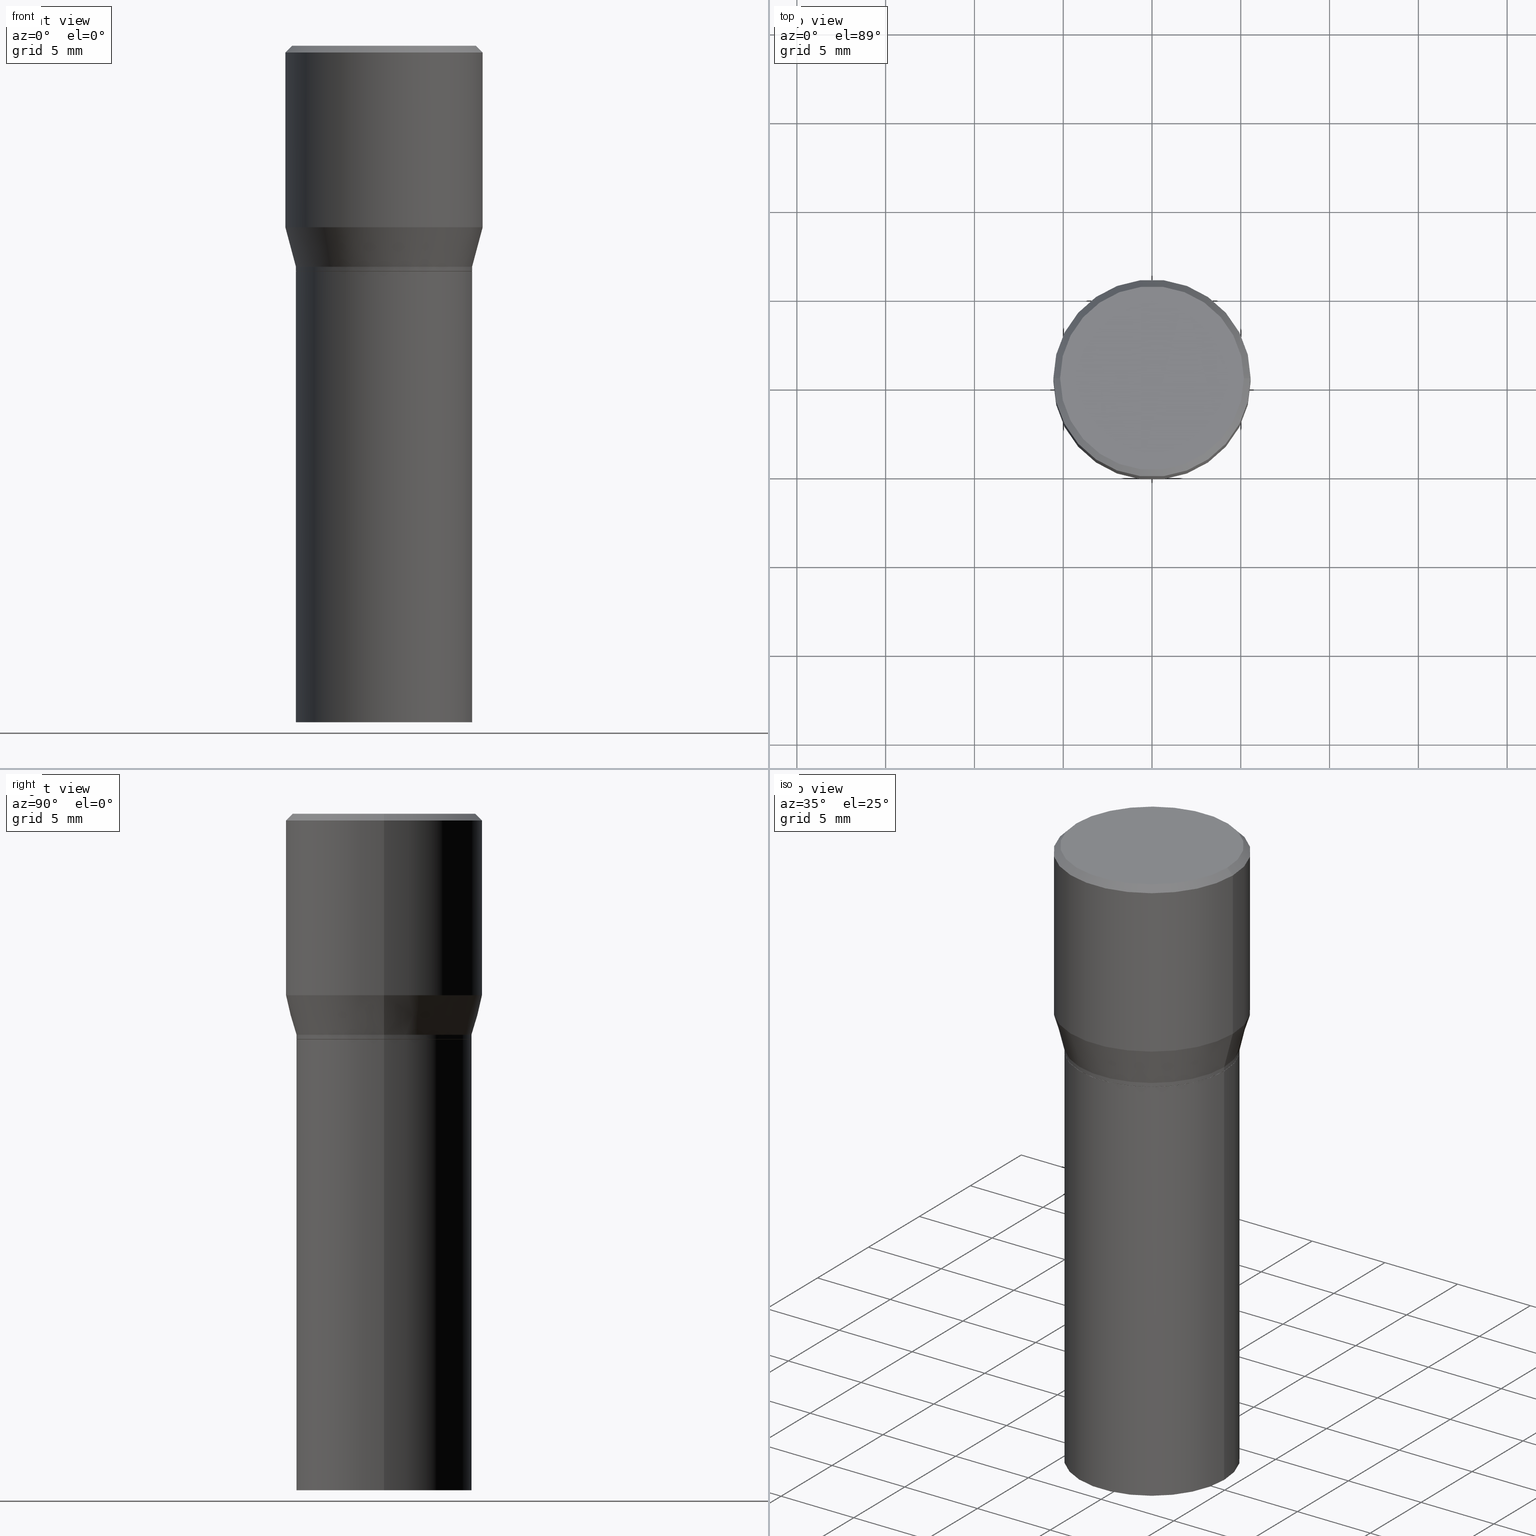
[diagram: canonical four-view strip — front | top / right | iso, engineering-drawing reading convention]
A machine part, canonical four-view strip (front | top / right | iso — engineering-drawing reading convention). The complete STEP part file that produces these views, byte-faithful:
ISO-10303-21;
HEADER;
FILE_DESCRIPTION (( 'STEP AP203' ),
    '1' );
FILE_NAME ('30835.STEP',
    '2024-03-13T16:26:19',
    ( '' ),
    ( '' ),
    'SwSTEP 2.0',
    'SolidWorks 2023',
    '' );
FILE_SCHEMA (( 'CONFIG_CONTROL_DESIGN' ));
ENDSEC;

DATA;
#1 = EDGE_CURVE ( 'NONE', #431, #134, #230, .T. ) ;
#2 = CIRCLE ( 'NONE', #252, 0.1953000000000000014 ) ;
#3 = FACE_OUTER_BOUND ( 'NONE', #228, .T. ) ;
#4 = FACE_OUTER_BOUND ( 'NONE', #428, .T. ) ;
#5 = ADVANCED_FACE ( 'NONE', ( #55 ), #350, .T. ) ;
#6 = ORIENTED_EDGE ( 'NONE', *, *, #389, .F. ) ;
#7 = FACE_OUTER_BOUND ( 'NONE', #311, .T. ) ;
#8 = AXIS2_PLACEMENT_3D ( 'NONE', #409, #18, #420 ) ;
#9 = LOCAL_TIME ( 12, 26, 19.00000000000000000, #200 ) ;
#10 = DIRECTION ( 'NONE',  ( -0.2588190451025214611, 5.211531920934551042E-15, 0.9659258262890682012 ) ) ;
#11 = CARTESIAN_POINT ( 'NONE',  ( 0.000000000000000000, 0.000000000000000000, 0.000000000000000000 ) ) ;
#12 = CARTESIAN_POINT ( 'NONE',  ( 0.1952999999999999736, -1.363772610952127497E-15, 9.523173243129459375E-30 ) ) ;
#13 = EDGE_CURVE ( 'NONE', #232, #96, #72, .T. ) ;
#14 = ADVANCED_FACE ( 'NONE', ( #25 ), #259, .F. ) ;
#15 = CARTESIAN_POINT ( 'NONE',  ( 0.000000000000000000, 0.000000000000000000, 0.000000000000000000 ) ) ;
#16 = CARTESIAN_POINT ( 'NONE',  ( -0.2037499999999999867, 1.448964755619900421E-15, 1.060151966214468518E-16 ) ) ;
#17 = EDGE_LOOP ( 'NONE', ( #226, #132, #190, #56 ) ) ;
#18 = DIRECTION ( 'NONE',  ( -2.445468806185136597E-29, 3.491481338843145583E-15, 1.000000000000000000 ) ) ;
#19 = ADVANCED_FACE ( 'NONE', ( #388 ), #432, .F. ) ;
#20 = CARTESIAN_POINT ( 'NONE',  ( 0.1953000000000000014, -3.109513280373700880E-15, -0.5000000000000001110 ) ) ;
#21 = AXIS2_PLACEMENT_3D ( 'NONE', #286, #51, #323 ) ;
#22 = CARTESIAN_POINT ( 'NONE',  ( 0.000000000000000000, 0.000000000000000000, 0.000000000000000000 ) ) ;
#23 = DIRECTION ( 'NONE',  ( -1.000000000000000000, 6.982962677686266711E-15, 0.000000000000000000 ) ) ;
#24 = EDGE_LOOP ( 'NONE', ( #381, #380, #399, #419 ) ) ;
#25 = FACE_OUTER_BOUND ( 'NONE', #159, .T. ) ;
#26 = LINE ( 'NONE', #379, #235 ) ;
#27 = CARTESIAN_POINT ( 'NONE',  ( 1.221511668689476057E-29, -1.743994928752151682E-15, -0.4995000000000001661 ) ) ;
#28 = AXIS2_PLACEMENT_3D ( 'NONE', #423, #92, #299 ) ;
#29 = PERSON_AND_ORGANIZATION_ROLE ( 'creator' ) ;
#30 = MANIFOLD_SOLID_BREP ( 'Body-Move/Copy2[1]', #358 ) ;
#31 = FACE_OUTER_BOUND ( 'NONE', #180, .T. ) ;
#32 = DATE_TIME_ROLE ( 'classification_date' ) ;
#33 = ORIENTED_EDGE ( 'NONE', *, *, #236, .T. ) ;
#34 = LINE ( 'NONE', #316, #95 ) ;
#35 = CIRCLE ( 'NONE', #412, 0.2037499999999999867 ) ;
#36 = AXIS2_PLACEMENT_3D ( 'NONE', #147, #367, #314 ) ;
#37 = DIRECTION ( 'NONE',  ( -0.7071067811865452413, 2.468850131082233000E-15, -0.7071067811865497932 ) ) ;
#38 = DIRECTION ( 'NONE',  ( -2.445468806185136877E-29, 3.491481338843145188E-15, 1.000000000000000000 ) ) ;
#39 = LINE ( 'NONE', #108, #363 ) ;
#40 = VECTOR ( 'NONE', #155, 39.37007874015748143 ) ;
#41 = CARTESIAN_POINT ( 'NONE',  ( 1.222734403092568719E-29, -1.745740669421573186E-15, -0.5000000000000001110 ) ) ;
#42 = CC_DESIGN_PERSON_AND_ORGANIZATION_ASSIGNMENT ( #203, #137, ( #213 ) ) ;
#43 = DIRECTION ( 'NONE',  ( 1.000000000000000000, -6.982962677686265922E-15, 0.000000000000000000 ) ) ;
#44 = ADVANCED_FACE ( 'NONE', ( #348 ), #462, .T. ) ;
#45 = DIRECTION ( 'NONE',  ( -2.445468806185136597E-29, 3.491481338843145583E-15, 1.000000000000000000 ) ) ;
#46 = DIRECTION ( 'NONE',  ( -2.445468806185136597E-29, 3.491481338843145583E-15, 1.000000000000000000 ) ) ;
#47 = ORIENTED_EDGE ( 'NONE', *, *, #224, .T. ) ;
#48 = DIRECTION ( 'NONE',  ( 0.2588190451025214611, 1.565188264969621573E-15, 0.9659258262890682012 ) ) ;
#49 = AXIS2_PLACEMENT_3D ( 'NONE', #138, #166, #68 ) ;
#50 = AXIS2_PLACEMENT_3D ( 'NONE', #251, #45, #154 ) ;
#51 = DIRECTION ( 'NONE',  ( -2.445468806185136597E-29, 3.491481338843145583E-15, 1.000000000000000000 ) ) ;
#52 = CARTESIAN_POINT ( 'NONE',  ( 1.222734403092568719E-29, -1.745740669421573186E-15, -0.5000000000000001110 ) ) ;
#53 = VERTEX_POINT ( 'NONE', #141 ) ;
#54 = DIRECTION ( 'NONE',  ( -2.445468806185136597E-29, 3.491481338843145583E-15, 1.000000000000000000 ) ) ;
#55 = FACE_OUTER_BOUND ( 'NONE', #24, .T. ) ;
#56 = ORIENTED_EDGE ( 'NONE', *, *, #173, .F. ) ;
#57 = EDGE_LOOP ( 'NONE', ( #354, #404, #79, #301 ) ) ;
#58 = AXIS2_PLACEMENT_3D ( 'NONE', #184, #334, #225 ) ;
#59 = LOCAL_TIME ( 12, 26, 19.00000000000000000, #458 ) ;
#60 = DIRECTION ( 'NONE',  ( -2.445468806185136597E-29, 3.491481338843145583E-15, 1.000000000000000000 ) ) ;
#61 = DIRECTION ( 'NONE',  ( -2.445468806185136877E-29, 3.491481338843145188E-15, 1.000000000000000000 ) ) ;
#62 = CIRCLE ( 'NONE', #133, 0.1948000000000000009 ) ;
#63 = CALENDAR_DATE ( 2024, 13, 3 ) ;
#64 = EDGE_CURVE ( 'NONE', #82, #455, #406, .T. ) ;
#65 = CARTESIAN_POINT ( 'NONE',  ( 0.1953000000000000014, -3.107767539704279377E-15, -0.4995000000000001661 ) ) ;
#66 = DATE_TIME_ROLE ( 'creation_date' ) ;
#67 = ORIENTED_EDGE ( 'NONE', *, *, #64, .T. ) ;
#68 = DIRECTION ( 'NONE',  ( 1.000000000000000000, -6.982962677686265922E-15, 4.876176775795935793E-29 ) ) ;
#69 = APPROVAL_STATUS ( 'not_yet_approved' ) ;
#70 =( CONVERSION_BASED_UNIT ( 'INCH', #209 ) LENGTH_UNIT ( ) NAMED_UNIT ( #119 ) );
#71 = CARTESIAN_POINT ( 'NONE',  ( 3.668203209277705088E-31, -5.237222008264718399E-17, -0.01499999999999999944 ) ) ;
#72 = CIRCLE ( 'NONE', #28, 0.2037499999999999867 ) ;
#73 = DIRECTION ( 'NONE',  ( -2.445468806185136597E-29, 3.491481338843145583E-15, 1.000000000000000000 ) ) ;
#74 = COORDINATED_UNIVERSAL_TIME_OFFSET ( 5, 0, .BEHIND. ) ;
#75 = CALENDAR_DATE ( 2024, 13, 3 ) ;
#76 = EDGE_CURVE ( 'NONE', #345, #53, #460, .T. ) ;
#77 = APPROVAL_PERSON_ORGANIZATION ( #247, #405, #115 ) ;
#78 = PRODUCT_DEFINITION ( 'UNKNOWN', '', #453, #309 ) ;
#79 = ORIENTED_EDGE ( 'NONE', *, *, #322, .F. ) ;
#80 = DIRECTION ( 'NONE',  ( -2.445468806185136597E-29, 3.491481338843145583E-15, 1.000000000000000000 ) ) ;
#81 = DIRECTION ( 'NONE',  ( -2.445468806185136877E-29, 3.491481338843145188E-15, 1.000000000000000000 ) ) ;
#82 = VERTEX_POINT ( 'NONE', #65 ) ;
#83 = ORIENTED_EDGE ( 'NONE', *, *, #322, .T. ) ;
#84 = AXIS2_PLACEMENT_3D ( 'NONE', #304, #136, #274 ) ;
#85 = ADVANCED_BREP_SHAPE_REPRESENTATION ( '30835', ( #30, #337, #330 ), #305 ) ;
#86 = ORIENTED_EDGE ( 'NONE', *, *, #76, .T. ) ;
#87 = DIRECTION ( 'NONE',  ( -2.445468806185136597E-29, 3.491481338843145583E-15, 1.000000000000000000 ) ) ;
#88 = CARTESIAN_POINT ( 'NONE',  ( 1.198279715030717173E-29, -1.710825856033141537E-15, -0.4900000000000001021 ) ) ;
#89 = PRODUCT_RELATED_PRODUCT_CATEGORY ( 'detail', '', ( #421 ) ) ;
#90 = EDGE_CURVE ( 'NONE', #232, #345, #357, .T. ) ;
#91 = DIRECTION ( 'NONE',  ( 1.000000000000000000, -6.982962677686265922E-15, 0.000000000000000000 ) ) ;
#92 = DIRECTION ( 'NONE',  ( -2.445468806185136597E-29, 3.491481338843145583E-15, 1.000000000000000000 ) ) ;
#93 = LINE ( 'NONE', #336, #440 ) ;
#94 = AXIS2_PLACEMENT_3D ( 'NONE', #339, #54, #91 ) ;
#95 = VECTOR ( 'NONE', #38, 39.37007874015748143 ) ;
#96 = VERTEX_POINT ( 'NONE', #465 ) ;
#97 = DIRECTION ( 'NONE',  ( -2.445468806185136597E-29, 3.491481338843145583E-15, 1.000000000000000000 ) ) ;
#98 = ADVANCED_FACE ( 'NONE', ( #434 ), #317, .T. ) ;
#99 = DATE_AND_TIME ( #63, #254 ) ;
#100 = CARTESIAN_POINT ( 'NONE',  ( -0.2187500000000000000, 1.475150865661223567E-15, -0.01499999999999999944 ) ) ;
#101 = CIRCLE ( 'NONE', #382, 0.1952999999999999736 ) ;
#102 = AXIS2_PLACEMENT_3D ( 'NONE', #120, #113, #111 ) ;
#103 = DIRECTION ( 'NONE',  ( 1.000000000000000000, -6.982962677686265922E-15, 0.000000000000000000 ) ) ;
#104 = EDGE_LOOP ( 'NONE', ( #67, #444, #220, #331 ) ) ;
#105 = PERSON ( 'UNSPECIFIED', 'UNSPECIFIED', 'UNSPECIFIED', ('UNSPECIFIED'), ('UNSPECIFIED'), ('UNSPECIFIED') ) ;
#106 = SECURITY_CLASSIFICATION_LEVEL ( 'unclassified' ) ;
#107 = CARTESIAN_POINT ( 'NONE',  ( -0.1953000000000000014, -3.563049658126762559E-16, -0.4995000000000001661 ) ) ;
#108 = CARTESIAN_POINT ( 'NONE',  ( -0.1948000000000000009, -3.616034201608981156E-16, -0.5000000000000001110 ) ) ;
#109 = AXIS2_PLACEMENT_3D ( 'NONE', #262, #189, #266 ) ;
#110 = APPROVAL_PERSON_ORGANIZATION ( #233, #269, #205 ) ;
#111 = DIRECTION ( 'NONE',  ( -1.000000000000000000, 6.982962677686266711E-15, 0.000000000000000000 ) ) ;
#112 = APPROVAL_STATUS ( 'not_yet_approved' ) ;
#113 = DIRECTION ( 'NONE',  ( 2.445468806185136597E-29, -3.491481338843145583E-15, -1.000000000000000000 ) ) ;
#114 = AXIS2_PLACEMENT_3D ( 'NONE', #313, #398, #276 ) ;
#115 = APPROVAL_ROLE ( '' ) ;
#116 = APPLICATION_CONTEXT ( 'configuration controlled 3d designs of mechanical parts and assemblies' ) ;
#117 = DIRECTION ( 'NONE',  ( -2.445468806185136597E-29, 3.491481338843145583E-15, 1.000000000000000000 ) ) ;
#118 = DIRECTION ( 'NONE',  ( -2.445468806185136597E-29, 3.491481338843145583E-15, 1.000000000000000000 ) ) ;
#119 = DIMENSIONAL_EXPONENTS ( 1.000000000000000000, 0.000000000000000000, 0.000000000000000000, 0.000000000000000000, 0.000000000000000000, 0.000000000000000000, 0.000000000000000000 ) ;
#120 = CARTESIAN_POINT ( 'NONE',  ( 3.668203209277705088E-31, -5.237222008264718399E-17, -0.01499999999999999944 ) ) ;
#121 = ORIENTED_EDGE ( 'NONE', *, *, #13, .F. ) ;
#122 = PERSON_AND_ORGANIZATION ( #105, #427 ) ;
#123 = ORIENTED_EDGE ( 'NONE', *, *, #127, .F. ) ;
#124 = CLOSED_SHELL ( 'NONE', ( #403, #457, #5, #312, #402, #98, #44, #294, #14, #239, #361, #243 ) ) ;
#125 = ORIENTED_EDGE ( 'NONE', *, *, #90, .T. ) ;
#126 = CARTESIAN_POINT ( 'NONE',  ( -2.592568563193567003E-45, 3.701500806376036554E-31, 1.060151966214568974E-16 ) ) ;
#127 = EDGE_CURVE ( 'NONE', #455, #82, #2, .T. ) ;
#128 = CARTESIAN_POINT ( 'NONE',  ( 3.668203209277704895E-29, -5.237222008264718177E-15, -1.500000000000000222 ) ) ;
#129 = EDGE_CURVE ( 'NONE', #96, #53, #308, .T. ) ;
#130 = DIRECTION ( 'NONE',  ( 1.000000000000000000, -6.982962677686265922E-15, 4.876176775795935793E-29 ) ) ;
#131 = CYLINDRICAL_SURFACE ( 'NONE', #320, 0.1952999999999999736 ) ;
#132 = ORIENTED_EDGE ( 'NONE', *, *, #127, .T. ) ;
#133 = AXIS2_PLACEMENT_3D ( 'NONE', #52, #80, #182 ) ;
#134 = VERTEX_POINT ( 'NONE', #240 ) ;
#135 = ADVANCED_FACE ( 'NONE', ( #3 ), #441, .F. ) ;
#136 = DIRECTION ( 'NONE',  ( -2.445468806185136597E-29, 3.491481338843145583E-15, 1.000000000000000000 ) ) ;
#137 = PERSON_AND_ORGANIZATION_ROLE ( 'classification_officer' ) ;
#138 = CARTESIAN_POINT ( 'NONE',  ( 3.576687321579069994E-29, -5.368277968210015545E-15, -1.500000000000000222 ) ) ;
#139 = AXIS2_PLACEMENT_3D ( 'NONE', #128, #378, #188 ) ;
#140 = LOCAL_TIME ( 12, 26, 19.00000000000000000, #74 ) ;
#141 = CARTESIAN_POINT ( 'NONE',  ( 0.2187500000000000000, -1.579895305826517922E-15, -0.01499999999999999944 ) ) ;
#142 = UNCERTAINTY_MEASURE_WITH_UNIT (LENGTH_MEASURE( 1.000000000000000082E-05 ), #70, 'distance_accuracy_value', 'NONE');
#143 = EDGE_CURVE ( 'NONE', #96, #232, #35, .T. ) ;
#144 = EDGE_CURVE ( 'NONE', #82, #152, #383, .T. ) ;
#145 = ADVANCED_FACE ( 'NONE', ( #295 ), #187, .T. ) ;
#146 = CYLINDRICAL_SURFACE ( 'NONE', #50, 0.1952999999999999736 ) ;
#147 = CARTESIAN_POINT ( 'NONE',  ( 1.222734403092568719E-29, -1.745740669421573186E-15, -0.5000000000000001110 ) ) ;
#148 = DIRECTION ( 'NONE',  ( -2.445468806185136597E-29, 3.491481338843145583E-15, 1.000000000000000000 ) ) ;
#149 = DIRECTION ( 'NONE',  ( 1.000000000000000000, -6.982962677686266711E-15, 0.000000000000000000 ) ) ;
#150 = MECHANICAL_CONTEXT ( 'NONE', #116, 'mechanical' ) ;
#151 = CARTESIAN_POINT ( 'NONE',  ( -0.2187500000000000000, 1.554312234475219157E-15, -1.076017050993260622E-29 ) ) ;
#152 = VERTEX_POINT ( 'NONE', #261 ) ;
#153 = DIRECTION ( 'NONE',  ( 1.000000000000000000, -6.982962677686266711E-15, 0.000000000000000000 ) ) ;
#154 = DIRECTION ( 'NONE',  ( 1.000000000000000000, -6.982962677686265922E-15, 4.876176775795934672E-29 ) ) ;
#155 = DIRECTION ( 'NONE',  ( -2.445468806185136877E-29, 3.491481338843145188E-15, 1.000000000000000000 ) ) ;
#156 = ORIENTED_EDGE ( 'NONE', *, *, #362, .F. ) ;
#157 = VECTOR ( 'NONE', #250, 39.37007874015748143 ) ;
#158 = LOCAL_TIME ( 12, 26, 19.00000000000000000, #167 ) ;
#159 = EDGE_LOOP ( 'NONE', ( #394, #370 ) ) ;
#160 = CC_DESIGN_PERSON_AND_ORGANIZATION_ASSIGNMENT ( #122, #283, ( #421 ) ) ;
#161 = DIRECTION ( 'NONE',  ( 2.438088387897960049E-29, -3.491481338843145188E-15, -1.000000000000000000 ) ) ;
#162 = DIRECTION ( 'NONE',  ( 0.7071067811865715536, -2.468850131082509496E-15, 0.7071067811865232589 ) ) ;
#163 = VERTEX_POINT ( 'NONE', #376 ) ;
#164 = AXIS2_PLACEMENT_3D ( 'NONE', #343, #340, #23 ) ;
#165 = EDGE_CURVE ( 'NONE', #152, #163, #101, .T. ) ;
#166 = DIRECTION ( 'NONE',  ( -2.438088387897960049E-29, 3.491481338843145188E-15, 1.000000000000000000 ) ) ;
#167 = COORDINATED_UNIVERSAL_TIME_OFFSET ( 5, 0, .BEHIND. ) ;
#168 = PERSON_AND_ORGANIZATION ( #105, #427 ) ;
#169 = CC_DESIGN_PERSON_AND_ORGANIZATION_ASSIGNMENT ( #237, #208, ( #453 ) ) ;
#170 = CIRCLE ( 'NONE', #94, 0.1952999999999999736 ) ;
#171 = PERSON_AND_ORGANIZATION ( #105, #427 ) ;
#172 = CONICAL_SURFACE ( 'NONE', #36, 0.1948000000000000009, 0.7853981633974824739 ) ;
#173 = EDGE_CURVE ( 'NONE', #163, #152, #170, .T. ) ;
#174 = DATE_AND_TIME ( #450, #59 ) ;
#175 = EDGE_CURVE ( 'NONE', #134, #431, #391, .T. ) ;
#176 = CIRCLE ( 'NONE', #8, 0.1953000000000000014 ) ;
#177 = FACE_OUTER_BOUND ( 'NONE', #104, .T. ) ;
#178 = ORIENTED_EDGE ( 'NONE', *, *, #386, .F. ) ;
#179 = CARTESIAN_POINT ( 'NONE',  ( -0.2187500000000000000, 8.254944693389027239E-16, -0.01499999999999999944 ) ) ;
#180 = EDGE_LOOP ( 'NONE', ( #292, #397, #197, #414 ) ) ;
#181 = CIRCLE ( 'NONE', #303, 0.2187500000000000000 ) ;
#182 = DIRECTION ( 'NONE',  ( 1.000000000000000000, -6.982962677686267499E-15, 0.000000000000000000 ) ) ;
#183 = CIRCLE ( 'NONE', #461, 0.1948000000000000009 ) ;
#184 = CARTESIAN_POINT ( 'NONE',  ( 1.363772610952139922E-15, 0.1952999999999982528, -0.5000000000000007772 ) ) ;
#185 = DIRECTION ( 'NONE',  ( 1.000000000000000000, -6.982962677686266711E-15, 0.000000000000000000 ) ) ;
#186 = EDGE_LOOP ( 'NONE', ( #451, #375, #238, #264 ) ) ;
#187 = CYLINDRICAL_SURFACE ( 'NONE', #329, 0.1953000000000000014 ) ;
#188 = DIRECTION ( 'NONE',  ( 1.000000000000000000, -6.982962677686269077E-15, 0.000000000000000000 ) ) ;
#189 = DIRECTION ( 'NONE',  ( -2.438088387897960049E-29, 3.491481338843145188E-15, 1.000000000000000000 ) ) ;
#190 = ORIENTED_EDGE ( 'NONE', *, *, #144, .T. ) ;
#191 = VECTOR ( 'NONE', #37, 39.37007874015748143 ) ;
#192 = CIRCLE ( 'NONE', #222, 0.1953000000000000014 ) ;
#193 = FACE_OUTER_BOUND ( 'NONE', #277, .T. ) ;
#194 = ORIENTED_EDGE ( 'NONE', *, *, #223, .T. ) ;
#195 = CARTESIAN_POINT ( 'NONE',  ( 9.842606206466859638E-30, -1.405263310189985589E-15, -0.4024834085625100810 ) ) ;
#196 = CARTESIAN_POINT ( 'NONE',  ( -0.1953000000000000014, -2.103791375903670501E-15, -0.5000000000000001110 ) ) ;
#197 = ORIENTED_EDGE ( 'NONE', *, *, #64, .F. ) ;
#198 = APPROVAL ( #393, 'UNSPECIFIED' ) ;
#199 = AXIS2_PLACEMENT_3D ( 'NONE', #384, #161, #411 ) ;
#200 = COORDINATED_UNIVERSAL_TIME_OFFSET ( 5, 0, .BEHIND. ) ;
#201 = CC_DESIGN_DATE_AND_TIME_ASSIGNMENT ( #396, #66, ( #78 ) ) ;
#202 = EDGE_CURVE ( 'NONE', #53, #345, #207, .T. ) ;
#203 = PERSON_AND_ORGANIZATION ( #105, #427 ) ;
#204 = ORIENTED_EDGE ( 'NONE', *, *, #210, .F. ) ;
#205 = APPROVAL_ROLE ( '' ) ;
#206 = DIRECTION ( 'NONE',  ( -2.445468806185136597E-29, 3.491481338843145583E-15, 1.000000000000000000 ) ) ;
#207 = CIRCLE ( 'NONE', #244, 0.2187500000000000000 ) ;
#208 = PERSON_AND_ORGANIZATION_ROLE ( 'creator' ) ;
#209 = LENGTH_MEASURE_WITH_UNIT ( LENGTH_MEASURE( 0.02539999999999999897 ), #459 );
#210 = EDGE_CURVE ( 'NONE', #270, #285, #176, .T. ) ;
#211 = EDGE_CURVE ( 'NONE', #306, #275, #260, .T. ) ;
#212 = LINE ( 'NONE', #364, #157 ) ;
#213 = SECURITY_CLASSIFICATION ( '', '', #106 ) ;
#214 = ORIENTED_EDGE ( 'NONE', *, *, #129, .F. ) ;
#215 = FACE_OUTER_BOUND ( 'NONE', #333, .T. ) ;
#216 = CC_DESIGN_PERSON_AND_ORGANIZATION_ASSIGNMENT ( #168, #463, ( #453 ) ) ;
#217 = VERTEX_POINT ( 'NONE', #290 ) ;
#218 = LINE ( 'NONE', #371, #401 ) ;
#219 = FACE_OUTER_BOUND ( 'NONE', #186, .T. ) ;
#220 = ORIENTED_EDGE ( 'NONE', *, *, #165, .F. ) ;
#221 = ORIENTED_EDGE ( 'NONE', *, *, #211, .F. ) ;
#222 = AXIS2_PLACEMENT_3D ( 'NONE', #41, #46, #284 ) ;
#223 = EDGE_CURVE ( 'NONE', #377, #217, #62, .T. ) ;
#224 = EDGE_CURVE ( 'NONE', #152, #275, #218, .T. ) ;
#225 = DIRECTION ( 'NONE',  ( -1.000000000000000000, 6.982962677686265922E-15, -4.876176775795935793E-29 ) ) ;
#226 = ORIENTED_EDGE ( 'NONE', *, *, #307, .F. ) ;
#227 = ADVANCED_FACE ( 'NONE', ( #332 ), #443, .T. ) ;
#228 = EDGE_LOOP ( 'NONE', ( #83, #268 ) ) ;
#229 = CARTESIAN_POINT ( 'NONE',  ( 3.668203209277704895E-29, -5.237222008264718177E-15, -1.500000000000000222 ) ) ;
#230 = CIRCLE ( 'NONE', #139, 0.1953000000000000014 ) ;
#231 = AXIS2_PLACEMENT_3D ( 'NONE', #246, #73, #360 ) ;
#232 = VERTEX_POINT ( 'NONE', #16 ) ;
#233 = PERSON_AND_ORGANIZATION ( #105, #427 ) ;
#234 = CARTESIAN_POINT ( 'NONE',  ( 0.2187500000000000000, -1.553106157095169608E-15, -0.01499999999999999944 ) ) ;
#235 = VECTOR ( 'NONE', #162, 39.37007874015748854 ) ;
#236 = EDGE_CURVE ( 'NONE', #275, #306, #181, .T. ) ;
#237 = PERSON_AND_ORGANIZATION ( #105, #427 ) ;
#238 = ORIENTED_EDGE ( 'NONE', *, *, #236, .F. ) ;
#239 = ADVANCED_FACE ( 'NONE', ( #193 ), #422, .F. ) ;
#240 = CARTESIAN_POINT ( 'NONE',  ( -0.1953000000000000014, -2.103791375903670501E-15, -1.500000000000000222 ) ) ;
#241 = DIRECTION ( 'NONE',  ( -0.7071067811865715536, 7.493145998870439357E-15, 0.7071067811865232589 ) ) ;
#242 = APPROVAL_DATE_TIME ( #174, #198 ) ;
#243 = ADVANCED_FACE ( 'NONE', ( #300 ), #131, .T. ) ;
#244 = AXIS2_PLACEMENT_3D ( 'NONE', #410, #265, #153 ) ;
#245 = CONICAL_SURFACE ( 'NONE', #102, 0.2187500000000000000, 0.7853981633974450594 ) ;
#246 = CARTESIAN_POINT ( 'NONE',  ( 1.222734403092568719E-29, -1.745740669421573186E-15, -0.5000000000000001110 ) ) ;
#247 = PERSON_AND_ORGANIZATION ( #105, #427 ) ;
#248 = APPLICATION_PROTOCOL_DEFINITION ( 'international standard', 'config_control_design', 1994, #395 ) ;
#249 = ORIENTED_EDGE ( 'NONE', *, *, #437, .F. ) ;
#250 = DIRECTION ( 'NONE',  ( -2.445468806185136877E-29, 3.491481338843145188E-15, 1.000000000000000000 ) ) ;
#251 = CARTESIAN_POINT ( 'NONE',  ( 0.000000000000000000, 0.000000000000000000, 0.000000000000000000 ) ) ;
#252 = AXIS2_PLACEMENT_3D ( 'NONE', #430, #97, #103 ) ;
#253 = EDGE_CURVE ( 'NONE', #431, #285, #93, .T. ) ;
#254 = LOCAL_TIME ( 12, 26, 19.00000000000000000, #355 ) ;
#255 = CARTESIAN_POINT ( 'NONE',  ( -0.1952999999999999736, -3.231358930936662090E-16, -0.4900000000000001021 ) ) ;
#256 = DIRECTION ( 'NONE',  ( -2.445468806185136597E-29, 3.491481338843145583E-15, 1.000000000000000000 ) ) ;
#257 = DIRECTION ( 'NONE',  ( -2.445468806185136877E-29, 3.491481338843145188E-15, 1.000000000000000000 ) ) ;
#258 = DIRECTION ( 'NONE',  ( -2.445468806185136597E-29, 3.491481338843145583E-15, 1.000000000000000000 ) ) ;
#259 = PLANE ( 'NONE',  #199 ) ;
#260 = CIRCLE ( 'NONE', #271, 0.2187500000000000000 ) ;
#261 = CARTESIAN_POINT ( 'NONE',  ( 0.1952999999999999736, -3.074598466985269231E-15, -0.4900000000000001021 ) ) ;
#262 = CARTESIAN_POINT ( 'NONE',  ( 1.222734403092568719E-29, -1.745740669421573186E-15, -0.5000000000000001110 ) ) ;
#263 = EDGE_LOOP ( 'NONE', ( #6, #297, #415, #281 ) ) ;
#264 = ORIENTED_EDGE ( 'NONE', *, *, #224, .F. ) ;
#265 = DIRECTION ( 'NONE',  ( -2.445468806185136597E-29, 3.491481338843145583E-15, 1.000000000000000000 ) ) ;
#266 = DIRECTION ( 'NONE',  ( 1.000000000000000000, -6.982962677686265922E-15, 4.876176775795935793E-29 ) ) ;
#267 = DIRECTION ( 'NONE',  ( 1.000000000000000000, -6.982962677686265922E-15, 0.000000000000000000 ) ) ;
#268 = ORIENTED_EDGE ( 'NONE', *, *, #210, .T. ) ;
#269 = APPROVAL ( #69, 'UNSPECIFIED' ) ;
#270 = VERTEX_POINT ( 'NONE', #196 ) ;
#271 = AXIS2_PLACEMENT_3D ( 'NONE', #195, #258, #149 ) ;
#272 = APPROVAL_PERSON_ORGANIZATION ( #171, #198, #315 ) ;
#273 = EDGE_LOOP ( 'NONE', ( #178, #349, #47, #221 ) ) ;
#274 = DIRECTION ( 'NONE',  ( 1.000000000000000000, -6.982962677686265922E-15, 0.000000000000000000 ) ) ;
#275 = VERTEX_POINT ( 'NONE', #346 ) ;
#276 = DIRECTION ( 'NONE',  ( 1.000000000000000000, -6.982962677686266711E-15, 4.876176775795935232E-29 ) ) ;
#277 = EDGE_LOOP ( 'NONE', ( #249, #385 ) ) ;
#278 = DIRECTION ( 'NONE',  ( 1.000000000000000000, -6.982962677686265922E-15, 0.000000000000000000 ) ) ;
#279 = CONICAL_SURFACE ( 'NONE', #413, 0.1952999999999999736, 0.2617993877991501295 ) ;
#280 = EDGE_CURVE ( 'NONE', #217, #82, #26, .T. ) ;
#281 = ORIENTED_EDGE ( 'NONE', *, *, #76, .F. ) ;
#282 = VECTOR ( 'NONE', #392, 39.37007874015748143 ) ;
#283 = PERSON_AND_ORGANIZATION_ROLE ( 'design_owner' ) ;
#284 = DIRECTION ( 'NONE',  ( 1.000000000000000000, -6.982962677686264344E-15, 0.000000000000000000 ) ) ;
#285 = VERTEX_POINT ( 'NONE', #20 ) ;
#286 = CARTESIAN_POINT ( 'NONE',  ( 0.000000000000000000, 0.000000000000000000, 0.000000000000000000 ) ) ;
#287 = CARTESIAN_POINT ( 'NONE',  ( 1.222734403092568719E-29, -1.745740669421573186E-15, -0.5000000000000001110 ) ) ;
#288 = AXIS2_PLACEMENT_3D ( 'NONE', #71, #206, #454 ) ;
#289 = VECTOR ( 'NONE', #257, 39.37007874015748143 ) ;
#290 = CARTESIAN_POINT ( 'NONE',  ( 0.1948000000000000009, -3.106021799034858268E-15, -0.5000000000000001110 ) ) ;
#291 = DIRECTION ( 'NONE',  ( 0.000000000000000000, 0.000000000000000000, 1.000000000000000000 ) ) ;
#292 = ORIENTED_EDGE ( 'NONE', *, *, #437, .T. ) ;
#293 = DIRECTION ( 'NONE',  ( -2.445468806185136597E-29, 3.491481338843145583E-15, 1.000000000000000000 ) ) ;
#294 = ADVANCED_FACE ( 'NONE', ( #4 ), #245, .T. ) ;
#295 = FACE_OUTER_BOUND ( 'NONE', #429, .T. ) ;
#296 = DIRECTION ( 'NONE',  ( -2.445468806185136597E-29, 3.491481338843145583E-15, 1.000000000000000000 ) ) ;
#297 = ORIENTED_EDGE ( 'NONE', *, *, #211, .T. ) ;
#298 = DIRECTION ( 'NONE',  ( 1.000000000000000000, -6.982962677686266711E-15, 4.875065411617369217E-29 ) ) ;
#299 = DIRECTION ( 'NONE',  ( 1.000000000000000000, -6.982962677686266711E-15, 4.875065411617369217E-29 ) ) ;
#300 = FACE_OUTER_BOUND ( 'NONE', #17, .T. ) ;
#301 = ORIENTED_EDGE ( 'NONE', *, *, #253, .F. ) ;
#302 = ORIENTED_EDGE ( 'NONE', *, *, #253, .T. ) ;
#303 = AXIS2_PLACEMENT_3D ( 'NONE', #344, #296, #185 ) ;
#304 = CARTESIAN_POINT ( 'NONE',  ( 1.198279715030717173E-29, -1.710825856033141537E-15, -0.4900000000000001021 ) ) ;
#305 =( GEOMETRIC_REPRESENTATION_CONTEXT ( 3 ) GLOBAL_UNCERTAINTY_ASSIGNED_CONTEXT ( ( #142 ) ) GLOBAL_UNIT_ASSIGNED_CONTEXT ( ( #70, #359, #335 ) ) REPRESENTATION_CONTEXT ( 'NONE', 'WORKASPACE' ) );
#306 = VERTEX_POINT ( 'NONE', #407 ) ;
#307 = EDGE_CURVE ( 'NONE', #455, #163, #212, .T. ) ;
#308 = LINE ( 'NONE', #234, #282 ) ;
#309 = DESIGN_CONTEXT ( 'detailed design', #395, 'design' ) ;
#310 = CALENDAR_DATE ( 2024, 13, 3 ) ;
#311 = EDGE_LOOP ( 'NONE', ( #33, #436, #400, #449 ) ) ;
#312 = ADVANCED_FACE ( 'NONE', ( #7 ), #369, .T. ) ;
#313 = CARTESIAN_POINT ( 'NONE',  ( 0.000000000000000000, 0.000000000000000000, 0.000000000000000000 ) ) ;
#314 = DIRECTION ( 'NONE',  ( 1.000000000000000000, -6.982962677686267499E-15, 0.000000000000000000 ) ) ;
#315 = APPROVAL_ROLE ( '' ) ;
#316 = CARTESIAN_POINT ( 'NONE',  ( 0.2187500000000000000, -1.527523085743870843E-15, 1.066663669705360885E-29 ) ) ;
#317 = CONICAL_SURFACE ( 'NONE', #84, 0.1952999999999999736, 0.2617993877991501295 ) ;
#318 = CC_DESIGN_APPROVAL ( #198, ( #213 ) ) ;
#319 = CALENDAR_DATE ( 2024, 13, 3 ) ;
#320 = AXIS2_PLACEMENT_3D ( 'NONE', #418, #87, #424 ) ;
#321 = VECTOR ( 'NONE', #81, 39.37007874015748143 ) ;
#322 = EDGE_CURVE ( 'NONE', #285, #270, #192, .T. ) ;
#323 = DIRECTION ( 'NONE',  ( 1.000000000000000000, -6.982962677686266711E-15, 4.876176775795935232E-29 ) ) ;
#324 = DATE_AND_TIME ( #75, #140 ) ;
#325 = ORIENTED_EDGE ( 'NONE', *, *, #280, .T. ) ;
#326 = CARTESIAN_POINT ( 'NONE',  ( 0.1953000000000000014, -6.600994619216846463E-15, -1.500000000000000222 ) ) ;
#327 = APPLICATION_PROTOCOL_DEFINITION ( 'international standard', 'config_control_design', 1994, #116 ) ;
#328 = APPROVAL_DATE_TIME ( #324, #405 ) ;
#329 = AXIS2_PLACEMENT_3D ( 'NONE', #22, #118, #130 ) ;
#330 = AXIS2_PLACEMENT_3D ( 'NONE', #15, #291, #372 ) ;
#331 = ORIENTED_EDGE ( 'NONE', *, *, #144, .F. ) ;
#332 = FACE_OUTER_BOUND ( 'NONE', #57, .T. ) ;
#333 = EDGE_LOOP ( 'NONE', ( #417, #194, #325, #123 ) ) ;
#334 = DIRECTION ( 'NONE',  ( 2.438088387897960049E-29, -3.491481338843145188E-15, -1.000000000000000000 ) ) ;
#335 =( NAMED_UNIT ( * ) SI_UNIT ( $, .STERADIAN. ) SOLID_ANGLE_UNIT ( ) );
#336 = CARTESIAN_POINT ( 'NONE',  ( 0.1953000000000000014, -1.363772610952127695E-15, 9.523173243129462177E-30 ) ) ;
#337 = MANIFOLD_SOLID_BREP ( 'Body-Move/Copy2[2]', #124 ) ;
#338 = ORIENTED_EDGE ( 'NONE', *, *, #175, .T. ) ;
#339 = CARTESIAN_POINT ( 'NONE',  ( 1.198279715030717173E-29, -1.710825856033141537E-15, -0.4900000000000001021 ) ) ;
#340 = DIRECTION ( 'NONE',  ( 2.445468806185136597E-29, -3.491481338843145583E-15, -1.000000000000000000 ) ) ;
#341 = DIRECTION ( 'NONE',  ( 1.000000000000000000, -6.982962677686265922E-15, 4.876176775795935793E-29 ) ) ;
#342 = PRODUCT_DEFINITION_SHAPE ( 'NONE', 'NONE',  #78 ) ;
#343 = CARTESIAN_POINT ( 'NONE',  ( 3.668203209277705088E-31, -5.237222008264718399E-17, -0.01499999999999999944 ) ) ;
#344 = CARTESIAN_POINT ( 'NONE',  ( 9.842606206466859638E-30, -1.405263310189985589E-15, -0.4024834085625100810 ) ) ;
#345 = VERTEX_POINT ( 'NONE', #179 ) ;
#346 = CARTESIAN_POINT ( 'NONE',  ( 0.2187500000000000000, -2.932786395933856235E-15, -0.4024834085625100810 ) ) ;
#347 = ORIENTED_EDGE ( 'NONE', *, *, #1, .F. ) ;
#348 = FACE_OUTER_BOUND ( 'NONE', #263, .T. ) ;
#349 = ORIENTED_EDGE ( 'NONE', *, *, #173, .T. ) ;
#350 = CONICAL_SURFACE ( 'NONE', #164, 0.2187500000000000000, 0.7853981633974450594 ) ;
#351 = CONICAL_SURFACE ( 'NONE', #231, 0.1948000000000000009, 0.7853981633974824739 ) ;
#352 = SHAPE_DEFINITION_REPRESENTATION ( #342, #85 ) ;
#353 = APPROVAL_DATE_TIME ( #387, #269 ) ;
#354 = ORIENTED_EDGE ( 'NONE', *, *, #1, .T. ) ;
#355 = COORDINATED_UNIVERSAL_TIME_OFFSET ( 5, 0, .BEHIND. ) ;
#356 = CC_DESIGN_DATE_AND_TIME_ASSIGNMENT ( #99, #32, ( #213 ) ) ;
#357 = LINE ( 'NONE', #100, #191 ) ;
#358 = CLOSED_SHELL ( 'NONE', ( #227, #19, #145, #135 ) ) ;
#359 =( NAMED_UNIT ( * ) PLANE_ANGLE_UNIT ( ) SI_UNIT ( $, .RADIAN. ) );
#360 = DIRECTION ( 'NONE',  ( 1.000000000000000000, -6.982962677686267499E-15, 0.000000000000000000 ) ) ;
#361 = ADVANCED_FACE ( 'NONE', ( #215 ), #172, .T. ) ;
#362 = EDGE_CURVE ( 'NONE', #134, #270, #438, .T. ) ;
#363 = VECTOR ( 'NONE', #241, 39.37007874015748854 ) ;
#364 = CARTESIAN_POINT ( 'NONE',  ( -0.1952999999999999736, 1.387689962939475476E-15, -9.606680231267830396E-30 ) ) ;
#365 = LINE ( 'NONE', #255, #433 ) ;
#366 = ORIENTED_EDGE ( 'NONE', *, *, #175, .F. ) ;
#367 = DIRECTION ( 'NONE',  ( -2.445468806185136597E-29, 3.491481338843145583E-15, 1.000000000000000000 ) ) ;
#368 = LINE ( 'NONE', #151, #321 ) ;
#369 = CYLINDRICAL_SURFACE ( 'NONE', #21, 0.2187500000000000000 ) ;
#370 = ORIENTED_EDGE ( 'NONE', *, *, #143, .T. ) ;
#371 = CARTESIAN_POINT ( 'NONE',  ( 0.1952999999999999736, -3.074598466985269231E-15, -0.4900000000000001021 ) ) ;
#372 = DIRECTION ( 'NONE',  ( 1.000000000000000000, 0.000000000000000000, 0.000000000000000000 ) ) ;
#373 = CARTESIAN_POINT ( 'NONE',  ( -0.1948000000000000009, -3.589541929867870625E-16, -0.5000000000000001110 ) ) ;
#374 = CC_DESIGN_SECURITY_CLASSIFICATION ( #213, ( #453 ) ) ;
#375 = ORIENTED_EDGE ( 'NONE', *, *, #386, .T. ) ;
#376 = CARTESIAN_POINT ( 'NONE',  ( -0.1952999999999999736, -8.704348440421619739E-17, -0.4900000000000001021 ) ) ;
#377 = VERTEX_POINT ( 'NONE', #373 ) ;
#378 = DIRECTION ( 'NONE',  ( -2.445468806185136597E-29, 3.491481338843145583E-15, 1.000000000000000000 ) ) ;
#379 = CARTESIAN_POINT ( 'NONE',  ( 0.1948000000000000009, -3.106021799034858268E-15, -0.5000000000000001110 ) ) ;
#380 = ORIENTED_EDGE ( 'NONE', *, *, #129, .T. ) ;
#381 = ORIENTED_EDGE ( 'NONE', *, *, #143, .F. ) ;
#382 = AXIS2_PLACEMENT_3D ( 'NONE', #88, #416, #267 ) ;
#383 = LINE ( 'NONE', #12, #40 ) ;
#384 = CARTESIAN_POINT ( 'NONE',  ( 1.422778645578576487E-15, 0.2037499999999999867, -6.583817244785623957E-16 ) ) ;
#385 = ORIENTED_EDGE ( 'NONE', *, *, #223, .F. ) ;
#386 = EDGE_CURVE ( 'NONE', #163, #306, #365, .T. ) ;
#387 = DATE_AND_TIME ( #319, #9 ) ;
#388 = FACE_OUTER_BOUND ( 'NONE', #425, .T. ) ;
#389 = EDGE_CURVE ( 'NONE', #306, #345, #368, .T. ) ;
#390 = PERSON_AND_ORGANIZATION ( #105, #427 ) ;
#391 = CIRCLE ( 'NONE', #426, 0.1953000000000000014 ) ;
#392 = DIRECTION ( 'NONE',  ( 0.7071067811865452413, -7.319954787623248157E-15, -0.7071067811865497932 ) ) ;
#393 = APPROVAL_STATUS ( 'not_yet_approved' ) ;
#394 = ORIENTED_EDGE ( 'NONE', *, *, #13, .T. ) ;
#395 = APPLICATION_CONTEXT ( 'configuration controlled 3d designs of mechanical parts and assemblies' ) ;
#396 = DATE_AND_TIME ( #310, #158 ) ;
#397 = ORIENTED_EDGE ( 'NONE', *, *, #446, .T. ) ;
#398 = DIRECTION ( 'NONE',  ( -2.445468806185136597E-29, 3.491481338843145583E-15, 1.000000000000000000 ) ) ;
#399 = ORIENTED_EDGE ( 'NONE', *, *, #202, .T. ) ;
#400 = ORIENTED_EDGE ( 'NONE', *, *, #202, .F. ) ;
#401 = VECTOR ( 'NONE', #48, 39.37007874015747433 ) ;
#402 = ADVANCED_FACE ( 'NONE', ( #219 ), #279, .T. ) ;
#403 = ADVANCED_FACE ( 'NONE', ( #177 ), #146, .T. ) ;
#404 = ORIENTED_EDGE ( 'NONE', *, *, #362, .T. ) ;
#405 = APPROVAL ( #112, 'UNSPECIFIED' ) ;
#406 = CIRCLE ( 'NONE', #452, 0.1953000000000000014 ) ;
#407 = CARTESIAN_POINT ( 'NONE',  ( -0.2187500000000000000, 1.490489242852337896E-16, -0.4024834085625100810 ) ) ;
#408 = CARTESIAN_POINT ( 'NONE',  ( 1.198279715030717173E-29, -1.710825856033141537E-15, -0.4900000000000001021 ) ) ;
#409 = CARTESIAN_POINT ( 'NONE',  ( 1.222734403092568719E-29, -1.745740669421573186E-15, -0.5000000000000001110 ) ) ;
#410 = CARTESIAN_POINT ( 'NONE',  ( 3.668203209277705088E-31, -5.237222008264718399E-17, -0.01499999999999999944 ) ) ;
#411 = DIRECTION ( 'NONE',  ( -1.000000000000000000, 6.982962677686265922E-15, -4.876176775795935793E-29 ) ) ;
#412 = AXIS2_PLACEMENT_3D ( 'NONE', #126, #256, #298 ) ;
#413 = AXIS2_PLACEMENT_3D ( 'NONE', #408, #148, #43 ) ;
#414 = ORIENTED_EDGE ( 'NONE', *, *, #280, .F. ) ;
#415 = ORIENTED_EDGE ( 'NONE', *, *, #439, .T. ) ;
#416 = DIRECTION ( 'NONE',  ( -2.445468806185136597E-29, 3.491481338843145583E-15, 1.000000000000000000 ) ) ;
#417 = ORIENTED_EDGE ( 'NONE', *, *, #446, .F. ) ;
#418 = CARTESIAN_POINT ( 'NONE',  ( 0.000000000000000000, 0.000000000000000000, 0.000000000000000000 ) ) ;
#419 = ORIENTED_EDGE ( 'NONE', *, *, #90, .F. ) ;
#420 = DIRECTION ( 'NONE',  ( 1.000000000000000000, -6.982962677686264344E-15, 0.000000000000000000 ) ) ;
#421 = PRODUCT ( '30835', '30835', '', ( #150 ) ) ;
#422 = PLANE ( 'NONE',  #109 ) ;
#423 = CARTESIAN_POINT ( 'NONE',  ( -2.592568563193567003E-45, 3.701500806376036554E-31, 1.060151966214568974E-16 ) ) ;
#424 = DIRECTION ( 'NONE',  ( 1.000000000000000000, -6.982962677686265922E-15, 4.876176775795934672E-29 ) ) ;
#425 = EDGE_LOOP ( 'NONE', ( #347, #366 ) ) ;
#426 = AXIS2_PLACEMENT_3D ( 'NONE', #229, #60, #445 ) ;
#427 = ORGANIZATION ( 'UNSPECIFIED', 'UNSPECIFIED', '' ) ;
#428 = EDGE_LOOP ( 'NONE', ( #214, #121, #125, #86 ) ) ;
#429 = EDGE_LOOP ( 'NONE', ( #156, #338, #302, #204 ) ) ;
#430 = CARTESIAN_POINT ( 'NONE',  ( 1.221511668689476057E-29, -1.743994928752151682E-15, -0.4995000000000001661 ) ) ;
#431 = VERTEX_POINT ( 'NONE', #326 ) ;
#432 = PLANE ( 'NONE',  #49 ) ;
#433 = VECTOR ( 'NONE', #10, 39.37007874015747433 ) ;
#434 = FACE_OUTER_BOUND ( 'NONE', #273, .T. ) ;
#435 = CARTESIAN_POINT ( 'NONE',  ( -0.1953000000000000014, 1.387689962939475673E-15, -9.606680231267831797E-30 ) ) ;
#436 = ORIENTED_EDGE ( 'NONE', *, *, #389, .T. ) ;
#437 = EDGE_CURVE ( 'NONE', #217, #377, #183, .T. ) ;
#438 = LINE ( 'NONE', #435, #289 ) ;
#439 = EDGE_CURVE ( 'NONE', #275, #53, #34, .T. ) ;
#440 = VECTOR ( 'NONE', #61, 39.37007874015748143 ) ;
#441 = PLANE ( 'NONE',  #58 ) ;
#442 = CC_DESIGN_APPROVAL ( #405, ( #78 ) ) ;
#443 = CYLINDRICAL_SURFACE ( 'NONE', #447, 0.1953000000000000014 ) ;
#444 = ORIENTED_EDGE ( 'NONE', *, *, #307, .T. ) ;
#445 = DIRECTION ( 'NONE',  ( 1.000000000000000000, -6.982962677686269077E-15, 0.000000000000000000 ) ) ;
#446 = EDGE_CURVE ( 'NONE', #377, #455, #39, .T. ) ;
#447 = AXIS2_PLACEMENT_3D ( 'NONE', #11, #293, #341 ) ;
#448 = CC_DESIGN_APPROVAL ( #269, ( #453 ) ) ;
#449 = ORIENTED_EDGE ( 'NONE', *, *, #439, .F. ) ;
#450 = CALENDAR_DATE ( 2024, 13, 3 ) ;
#451 = ORIENTED_EDGE ( 'NONE', *, *, #165, .T. ) ;
#452 = AXIS2_PLACEMENT_3D ( 'NONE', #27, #456, #278 ) ;
#453 = PRODUCT_DEFINITION_FORMATION_WITH_SPECIFIED_SOURCE ( 'ANY', '', #421, .NOT_KNOWN. ) ;
#454 = DIRECTION ( 'NONE',  ( 1.000000000000000000, -6.982962677686266711E-15, 0.000000000000000000 ) ) ;
#455 = VERTEX_POINT ( 'NONE', #107 ) ;
#456 = DIRECTION ( 'NONE',  ( -2.445468806185136597E-29, 3.491481338843145583E-15, 1.000000000000000000 ) ) ;
#457 = ADVANCED_FACE ( 'NONE', ( #31 ), #351, .T. ) ;
#458 = COORDINATED_UNIVERSAL_TIME_OFFSET ( 5, 0, .BEHIND. ) ;
#459 =( LENGTH_UNIT ( ) NAMED_UNIT ( * ) SI_UNIT ( $, .METRE. ) );
#460 = CIRCLE ( 'NONE', #288, 0.2187500000000000000 ) ;
#461 = AXIS2_PLACEMENT_3D ( 'NONE', #287, #117, #466 ) ;
#462 = CYLINDRICAL_SURFACE ( 'NONE', #114, 0.2187500000000000000 ) ;
#463 = PERSON_AND_ORGANIZATION_ROLE ( 'design_supplier' ) ;
#464 = CC_DESIGN_PERSON_AND_ORGANIZATION_ASSIGNMENT ( #390, #29, ( #78 ) ) ;
#465 = CARTESIAN_POINT ( 'NONE',  ( 0.2037499999999999867, -1.475466312070559275E-15, 1.060151966214670170E-16 ) ) ;
#466 = DIRECTION ( 'NONE',  ( 1.000000000000000000, -6.982962677686267499E-15, 0.000000000000000000 ) ) ;
ENDSEC;
END-ISO-10303-21;
